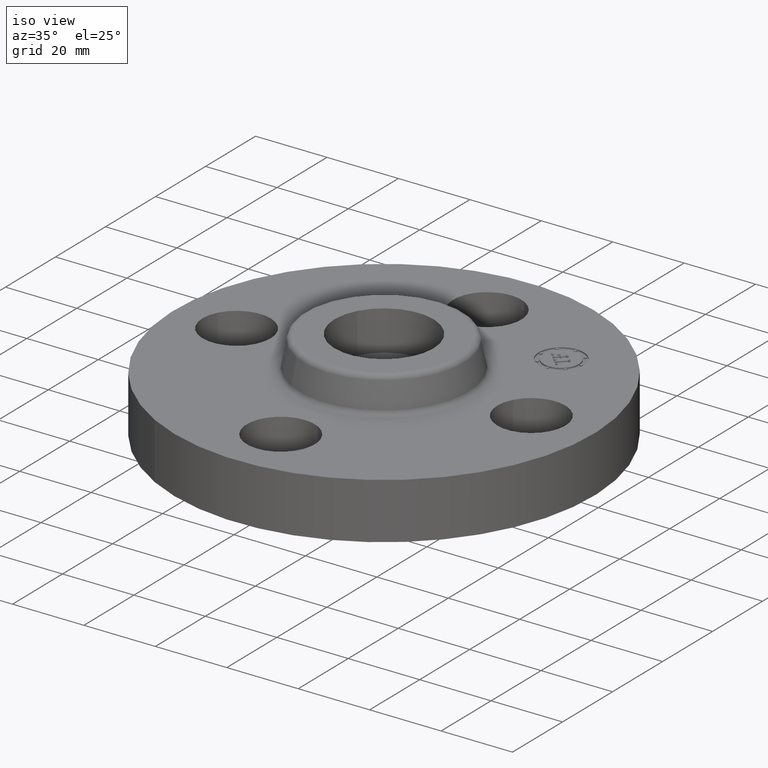
[diagram: clean part render]
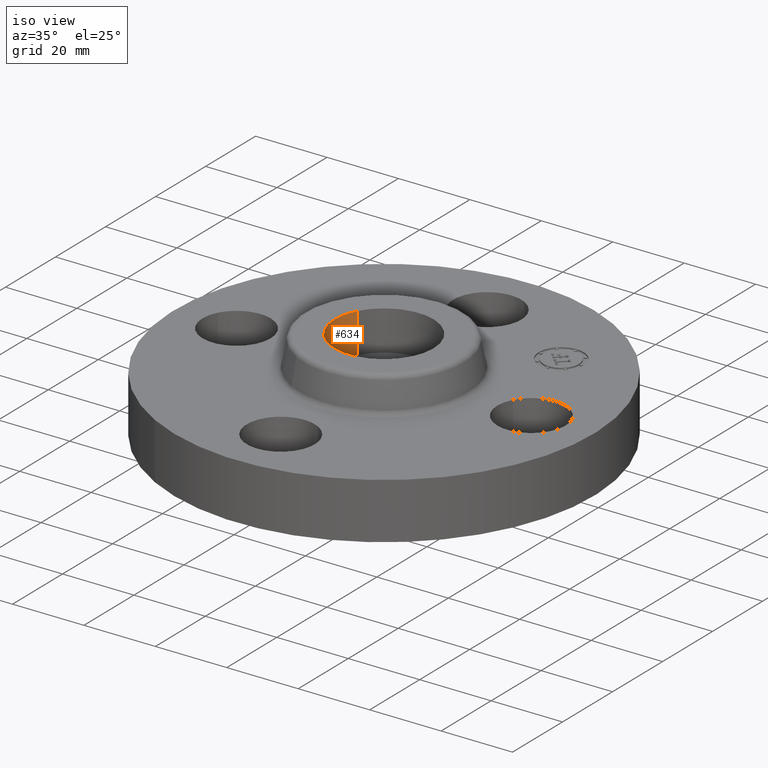
[diagram: same view with one face highlighted and labeled with its STEP entity id]
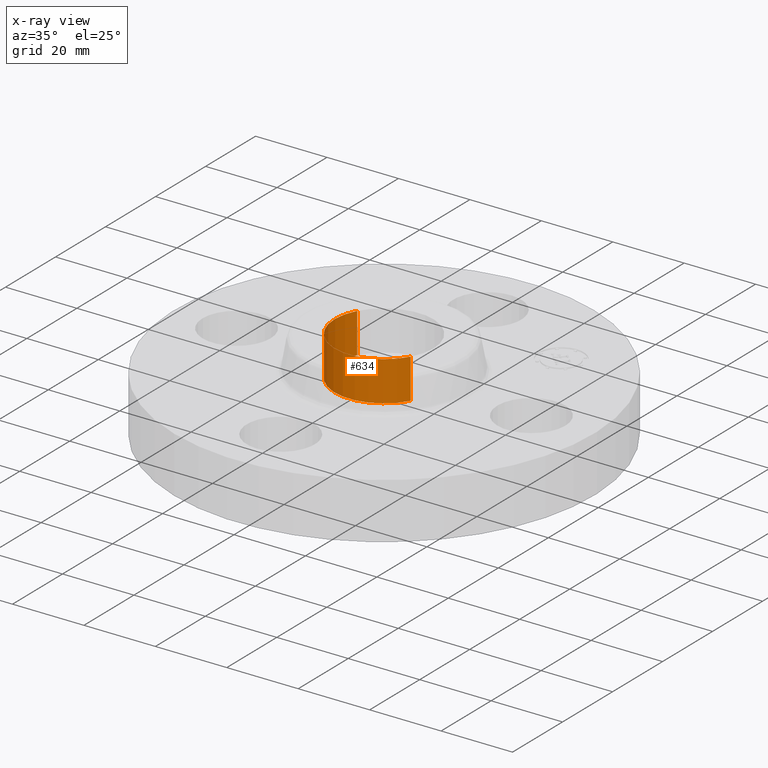
[diagram: x-ray of the same camera — body ghosted, the highlighted face saturated]
A machine part, iso view. The second image highlights one B-rep face of the part: STEP entity #634.
The next image is the same camera in x-ray: the body ghosted, the highlighted face saturated — about 0% of this face is hidden behind the body in this view.
In plain terms, the highlighted cylindrical surface (partial cylindrical patch) has radius 13.843 mm, axis along (0, 0, -1).
Its self-contained STEP definition (entity closure, byte-faithful):
#51=AXIS2_PLACEMENT_3D('Circle Axis2P3D',#49,#50,$) ;
#426=AXIS2_PLACEMENT_3D('Circle Axis2P3D',#424,#425,$) ;
#609=AXIS2_PLACEMENT_3D('Cylinder Axis2P3D',#606,#607,#608) ;
#44=CARTESIAN_POINT('Vertex',(-0.478282496232,0.26128691854,0.560000000002)) ;
#46=CARTESIAN_POINT('Vertex',(0.478282496232,-0.26128691854,0.560000000002)) ;
#49=CARTESIAN_POINT('Axis2P3D Location',(0.,-6.99353086378E-017,0.560000000002)) ;
#419=CARTESIAN_POINT('Vertex',(-0.478282496232,0.26128691854,1.)) ;
#421=CARTESIAN_POINT('Vertex',(0.478282496232,-0.26128691854,1.)) ;
#424=CARTESIAN_POINT('Axis2P3D Location',(1.04902962957E-016,0.,1.)) ;
#606=CARTESIAN_POINT('Axis2P3D Location',(0.,-6.99353086378E-017,0.99606299213)) ;
#611=CARTESIAN_POINT('Line Origine',(-0.478282496232,0.26128691854,0.780000000003)) ;
#616=CARTESIAN_POINT('Line Origine',(0.478282496232,-0.26128691854,0.780000000003)) ;
#50=DIRECTION('Axis2P3D Direction',(0.,0.,-0.0393700787402)) ;
#425=DIRECTION('Axis2P3D Direction',(0.,0.,-0.0393700787402)) ;
#607=DIRECTION('Axis2P3D Direction',(0.,0.,-0.0393700787402)) ;
#608=DIRECTION('Axis2P3D XDirection',(0.0345504945626,-0.0188750212049,0.)) ;
#612=DIRECTION('Vector Direction',(0.,0.,-0.0393700787402)) ;
#617=DIRECTION('Vector Direction',(0.,0.,-0.0393700787402)) ;
#613=VECTOR('Line Direction',#612,0.0393700787402) ;
#618=VECTOR('Line Direction',#617,0.0393700787402) ;
#629=ORIENTED_EDGE('',*,*,#428,.F.) ;
#630=ORIENTED_EDGE('',*,*,#620,.F.) ;
#631=ORIENTED_EDGE('',*,*,#53,.T.) ;
#632=ORIENTED_EDGE('',*,*,#615,.T.) ;
#634=ADVANCED_FACE('PartBody',(#633),#610,.F.) ;
#52=CIRCLE('generated circle',#51,0.545000000002) ;
#427=CIRCLE('generated circle',#426,0.545000000002) ;
#610=CYLINDRICAL_SURFACE('generated cylinder',#609,0.545000000002) ;
#53=EDGE_CURVE('',#47,#45,#52,.T.) ;
#428=EDGE_CURVE('',#422,#420,#427,.T.) ;
#615=EDGE_CURVE('',#45,#420,#614,.F.) ;
#620=EDGE_CURVE('',#47,#422,#619,.F.) ;
#628=EDGE_LOOP('',(#629,#630,#631,#632)) ;
#633=FACE_OUTER_BOUND('',#628,.T.) ;
#614=LINE('Line',#611,#613) ;
#619=LINE('Line',#616,#618) ;
#45=VERTEX_POINT('',#44) ;
#47=VERTEX_POINT('',#46) ;
#420=VERTEX_POINT('',#419) ;
#422=VERTEX_POINT('',#421) ;